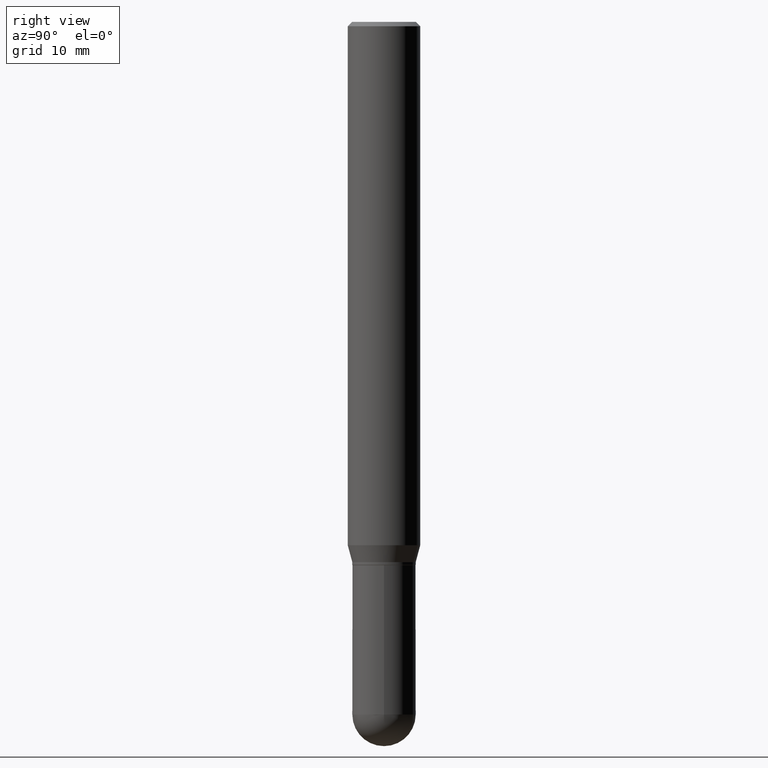
[diagram: clean part render]
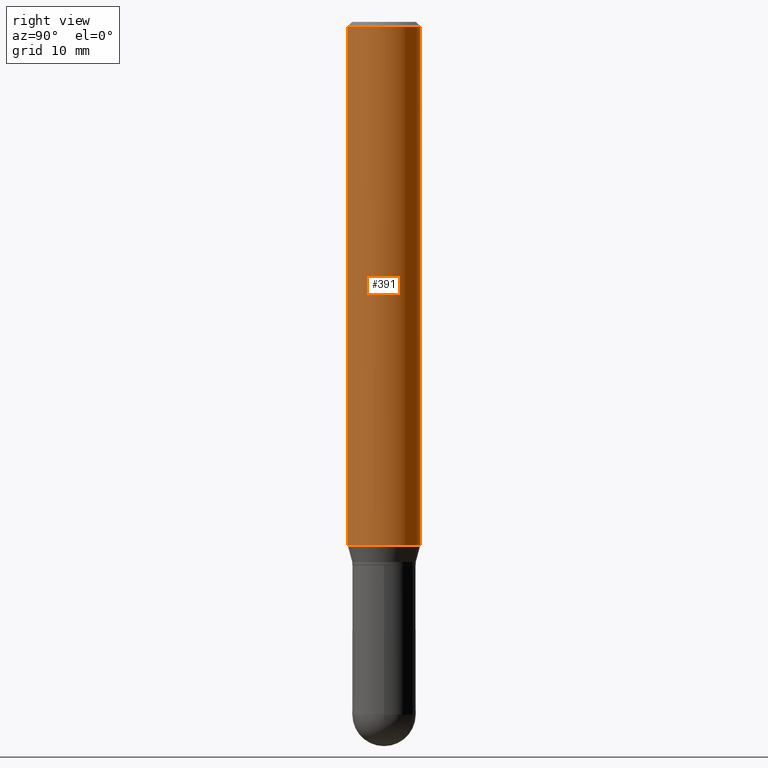
[diagram: same view with one face highlighted and labeled with its STEP entity id]
A machine part, right view. The second image highlights one B-rep face of the part: STEP entity #391.
In plain terms, the highlighted cylindrical surface (edge-blend (fillet) strip) has radius 3.175 mm, axis along (-0, 0, 1).
Its self-contained STEP definition (entity closure, byte-faithful):
#1 = ORIENTED_EDGE ( 'NONE', *, *, #460, .T. ) ;
#24 = CIRCLE ( 'NONE', #161, 0.1250000000000000000 ) ;
#62 = CARTESIAN_POINT ( 'NONE',  ( -8.728703347107832402E-16, -0.1250000000000000000, 4.364686386796093686E-16 ) ) ;
#74 = DIRECTION ( 'NONE',  ( -6.982962677686265922E-15, -1.000000000000000000, 4.370956789862821150E-15 ) ) ;
#77 = DIRECTION ( 'NONE',  ( -6.982962677686265922E-15, -1.000000000000000000, 3.491749109436874948E-15 ) ) ;
#97 = CARTESIAN_POINT ( 'NONE',  ( 8.881784197001251337E-16, 0.1250000000000000000, -4.364686386796093686E-16 ) ) ;
#116 = CIRCLE ( 'NONE', #395, 0.1250000000000000000 ) ;
#117 = DIRECTION ( 'NONE',  ( -2.445281822978917058E-29, 3.491749109436874948E-15, 1.000000000000000000 ) ) ;
#161 = AXIS2_PLACEMENT_3D ( 'NONE', #267, #225, #74 ) ;
#171 = LINE ( 'NONE', #97, #482 ) ;
#172 = ORIENTED_EDGE ( 'NONE', *, *, #365, .F. ) ;
#212 = ORIENTED_EDGE ( 'NONE', *, *, #252, .T. ) ;
#225 = DIRECTION ( 'NONE',  ( -2.445281822978917058E-29, 3.491749109436874948E-15, 1.000000000000000000 ) ) ;
#252 = EDGE_CURVE ( 'NONE', #384, #375, #171, .T. ) ;
#258 = EDGE_CURVE ( 'NONE', #330, #364, #402, .T. ) ;
#259 = VECTOR ( 'NONE', #286, 39.37007874015748143 ) ;
#264 = ORIENTED_EDGE ( 'NONE', *, *, #258, .F. ) ;
#265 = FACE_OUTER_BOUND ( 'NONE', #443, .T. ) ;
#267 = CARTESIAN_POINT ( 'NONE',  ( 4.418086310221640992E-29, -6.308822481794022912E-15, -1.806780007401925348 ) ) ;
#271 = CARTESIAN_POINT ( 'NONE',  ( -8.728703347107828458E-16, -0.1250000000000000555, -0.01499999999999949984 ) ) ;
#286 = DIRECTION ( 'NONE',  ( -2.445281822978917058E-29, 3.491749109436874554E-15, 1.000000000000000000 ) ) ;
#304 = DIRECTION ( 'NONE',  ( -2.445281822978917058E-29, 3.491749109436874948E-15, 1.000000000000000000 ) ) ;
#323 = DIRECTION ( 'NONE',  ( -2.445281822978917058E-29, 3.491749109436874554E-15, 1.000000000000000000 ) ) ;
#329 = CARTESIAN_POINT ( 'NONE',  ( -8.728703347107391626E-16, -0.1250000000000063283, -1.806780007401924681 ) ) ;
#330 = VERTEX_POINT ( 'NONE', #329 ) ;
#349 = AXIS2_PLACEMENT_3D ( 'NONE', #501, #117, #77 ) ;
#364 = VERTEX_POINT ( 'NONE', #271 ) ;
#365 = EDGE_CURVE ( 'NONE', #364, #375, #116, .T. ) ;
#375 = VERTEX_POINT ( 'NONE', #425 ) ;
#384 = VERTEX_POINT ( 'NONE', #511 ) ;
#391 = ADVANCED_FACE ( 'NONE', ( #265 ), #462, .T. ) ;
#395 = AXIS2_PLACEMENT_3D ( 'NONE', #457, #304, #506 ) ;
#402 = LINE ( 'NONE', #62, #259 ) ;
#425 = CARTESIAN_POINT ( 'NONE',  ( 8.881784197001696058E-16, 0.1249999999999999584, -0.01500000000000037588 ) ) ;
#443 = EDGE_LOOP ( 'NONE', ( #1, #212, #172, #264 ) ) ;
#457 = CARTESIAN_POINT ( 'NONE',  ( 3.667922734468360820E-31, -5.237623664155290976E-17, -0.01499999999999993873 ) ) ;
#460 = EDGE_CURVE ( 'NONE', #330, #384, #24, .T. ) ;
#462 = CYLINDRICAL_SURFACE ( 'NONE', #349, 0.1250000000000000000 ) ;
#482 = VECTOR ( 'NONE', #323, 39.37007874015748143 ) ;
#501 = CARTESIAN_POINT ( 'NONE',  ( 0.000000000000000000, 0.000000000000000000, 0.000000000000000000 ) ) ;
#506 = DIRECTION ( 'NONE',  ( -6.982962677686265922E-15, -1.000000000000000000, 3.500180241882337261E-15 ) ) ;
#511 = CARTESIAN_POINT ( 'NONE',  ( 8.881784197001690141E-16, 0.1249999999999936579, -1.806780007401925792 ) ) ;